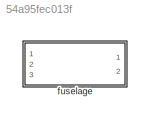
MODEL slx_54a95fec013f
KIND library
CONFIG AbsTol = auto
CONFIG EnableMultiTasking = off
CONFIG FixedStep = auto
CONFIG MaxStep = auto
CONFIG MinStep = auto
CONFIG RelTol = 1e-3
CONFIG SampleTimeConstraint = Unconstrained
CONFIG Solver = VariableStepAuto
CONFIG SolverName = VariableStepAuto
CONFIG StartTime = 0.0
CONFIG StopTime = 10.0
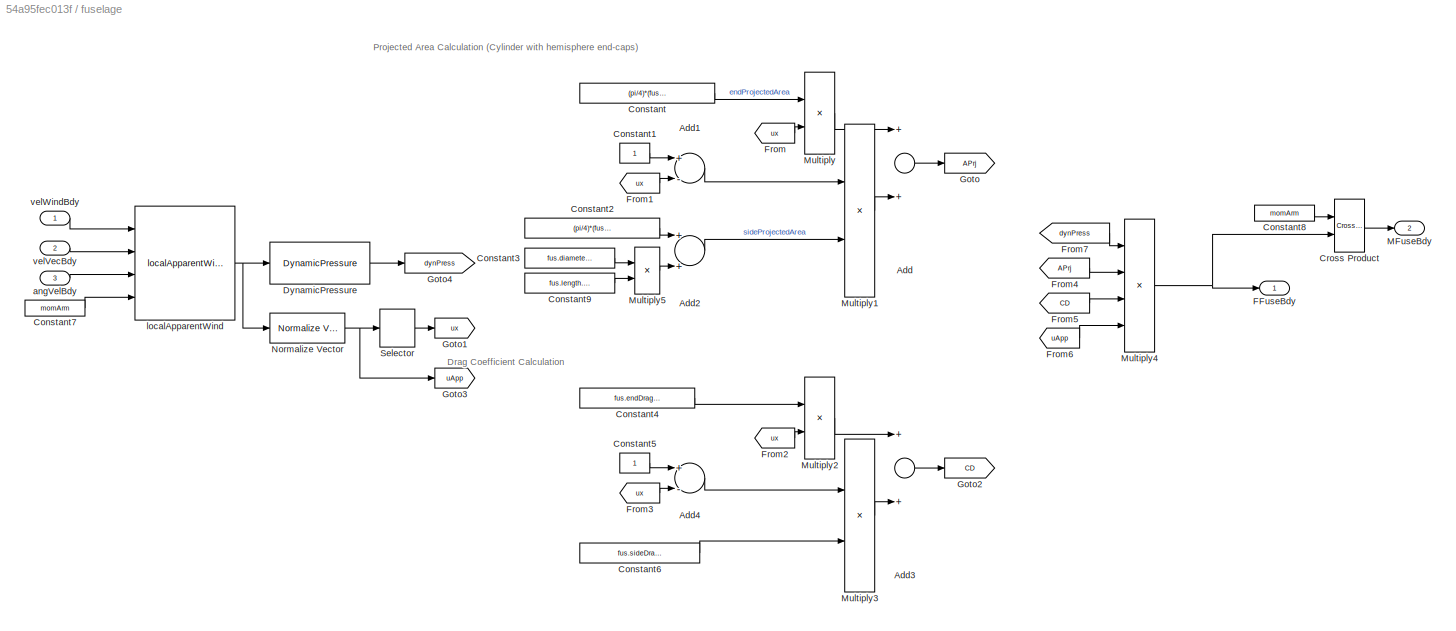
BLOCK [SubSystem] fuselage
  Ports = [3, 2]
  RequestExecContextInheritance = off
BLOCK [Sum] fuselage/Add
  InputSameDT = off
  OutDataTypeStr = Inherit: Inherit via internal rule
  Ports = [2, 1]
  SaturateOnIntegerOverflow = off
BLOCK [Sum] fuselage/Add1
  InputSameDT = off
  Inputs = +-
  OutDataTypeStr = Inherit: Inherit via internal rule
  Ports = [2, 1]
  SaturateOnIntegerOverflow = off
BLOCK [Sum] fuselage/Add2
  InputSameDT = off
  OutDataTypeStr = Inherit: Inherit via internal rule
  Ports = [2, 1]
  SaturateOnIntegerOverflow = off
BLOCK [Sum] fuselage/Add3
  InputSameDT = off
  OutDataTypeStr = Inherit: Inherit via internal rule
  Ports = [2, 1]
  SaturateOnIntegerOverflow = off
BLOCK [Sum] fuselage/Add4
  InputSameDT = off
  Inputs = +-
  OutDataTypeStr = Inherit: Inherit via internal rule
  Ports = [2, 1]
  SaturateOnIntegerOverflow = off
BLOCK [Constant] fuselage/Constant
  Value = (pi/4)*(fus.diameter.Value)^2
BLOCK [Constant] fuselage/Constant1
BLOCK [Constant] fuselage/Constant2
  Value = (pi/4)*(fus.diameter.Value)^2
BLOCK [Constant] fuselage/Constant3
  Value = fus.diameter.Value
BLOCK [Constant] fuselage/Constant4
  Value = fus.endDragCoeff.Value
BLOCK [Constant] fuselage/Constant5
BLOCK [Constant] fuselage/Constant6
  Value = fus.sideDragCoeff.Value
BLOCK [Constant] fuselage/Constant7
  Value = momArm
BLOCK [Constant] fuselage/Constant8
  Value = momArm
BLOCK [Constant] fuselage/Constant9
  Value = fus.length.Value
BLOCK [Reference] fuselage/Cross Product  REF=vrlib/Utilities/Cross Product
  Ports = [2, 1]
  SourceBlock = vrlib/Utilities/Cross Product
  SourceProductBaseCode = VR
  SourceProductName = Simulink 3D Animation
  SourceType = Cross Product
BLOCK [Reference] fuselage/DynamicPressure  REF=dynamicPressure_ul/DynamicPressure
  Ports = [1, 1]
  SourceBlock = dynamicPressure_ul/DynamicPressure
BLOCK [Outport] fuselage/FFuseBdy
  IconDisplay = Port number
BLOCK [From] fuselage/From
  GotoTag = ux
BLOCK [From] fuselage/From1
  GotoTag = ux
BLOCK [From] fuselage/From2
  GotoTag = ux
BLOCK [From] fuselage/From3
  GotoTag = ux
BLOCK [From] fuselage/From4
  GotoTag = APrj
BLOCK [From] fuselage/From5
  GotoTag = CD
BLOCK [From] fuselage/From6
  GotoTag = uApp
BLOCK [From] fuselage/From7
  GotoTag = dynPress
BLOCK [Goto] fuselage/Goto
  GotoTag = APrj
BLOCK [Goto] fuselage/Goto1
  GotoTag = ux
BLOCK [Goto] fuselage/Goto2
  GotoTag = CD
BLOCK [Goto] fuselage/Goto3
  GotoTag = uApp
BLOCK [Goto] fuselage/Goto4
  GotoTag = dynPress
BLOCK [Outport] fuselage/MFuseBdy
  IconDisplay = Port number
  Port = 2
BLOCK [Product] fuselage/Multiply
  InputSameDT = off
  OutDataTypeStr = Inherit: Inherit via internal rule
  Ports = [2, 1]
  RndMeth = Floor
  SaturateOnIntegerOverflow = off
BLOCK [Product] fuselage/Multiply1
  InputSameDT = off
  OutDataTypeStr = Inherit: Inherit via internal rule
  Ports = [2, 1]
  RndMeth = Floor
  SaturateOnIntegerOverflow = off
BLOCK [Product] fuselage/Multiply2
  InputSameDT = off
  OutDataTypeStr = Inherit: Inherit via internal rule
  Ports = [2, 1]
  RndMeth = Floor
  SaturateOnIntegerOverflow = off
BLOCK [Product] fuselage/Multiply3
  InputSameDT = off
  OutDataTypeStr = Inherit: Inherit via internal rule
  Ports = [2, 1]
  RndMeth = Floor
  SaturateOnIntegerOverflow = off
BLOCK [Product] fuselage/Multiply4
  InputSameDT = off
  Inputs = 4
  OutDataTypeStr = Inherit: Inherit via internal rule
  Ports = [4, 1]
  RndMeth = Floor
  SaturateOnIntegerOverflow = off
BLOCK [Product] fuselage/Multiply5
  InputSameDT = off
  OutDataTypeStr = Inherit: Inherit via internal rule
  Ports = [2, 1]
  RndMeth = Floor
  SaturateOnIntegerOverflow = off
BLOCK [Reference] fuselage/Normalize Vector  REF=vrlib/Utilities/Normalize Vector
  Ports = [1, 1]
  SourceBlock = vrlib/Utilities/Normalize Vector
  SourceProductBaseCode = VR
  SourceProductName = Simulink 3D Animation
  SourceType = Normalize Vector
BLOCK [Selector] fuselage/Selector
  IndexOptions = Index vector (dialog)
  Indices = 1
  InputPortWidth = 3
  OutputSizes = 1
  Ports = [1, 1]
BLOCK [Inport] fuselage/angVelBdy
  IconDisplay = Port number
  Port = 3
BLOCK [Reference] fuselage/localApparentWind  REF=localApparentWind_ul/localApparentWind
  Ports = [4, 1]
  SourceBlock = localApparentWind_ul/localApparentWind
  SourceType = SubSystem
BLOCK [Inport] fuselage/velVecBdy
  IconDisplay = Port number
  Port = 2
BLOCK [Inport] fuselage/velWindBdy
  IconDisplay = Port number
ANNOTATION fuselage: Drag Coefficient Calculation
ANNOTATION fuselage: Projected Area Calculation (Cylinder with hemisphere end-caps)
LINE fuselage/Add1:1 -> fuselage/Multiply1:1
LINE fuselage/Add2:1 -> fuselage/Multiply1:2
LINE fuselage/Add3:1 -> fuselage/Goto2:1
LINE fuselage/Add4:1 -> fuselage/Multiply3:1
LINE fuselage/Add:1 -> fuselage/Goto:1
LINE fuselage/Constant1:1 -> fuselage/Add1:1
LINE fuselage/Constant2:1 -> fuselage/Add2:1
LINE fuselage/Constant3:1 -> fuselage/Multiply5:1
LINE fuselage/Constant4:1 -> fuselage/Multiply2:1
LINE fuselage/Constant5:1 -> fuselage/Add4:1
LINE fuselage/Constant6:1 -> fuselage/Multiply3:2
LINE fuselage/Constant7:1 -> fuselage/localApparentWind:4
LINE fuselage/Constant8:1 -> fuselage/Cross Product:1
LINE fuselage/Constant9:1 -> fuselage/Multiply5:2
LINE fuselage/Constant:1 -> fuselage/Multiply:1
LINE fuselage/Cross Product:1 -> fuselage/MFuseBdy:1
LINE fuselage/DynamicPressure:1 -> fuselage/Goto4:1
LINE fuselage/From1:1 -> fuselage/Add1:2
LINE fuselage/From2:1 -> fuselage/Multiply2:2
LINE fuselage/From3:1 -> fuselage/Add4:2
LINE fuselage/From4:1 -> fuselage/Multiply4:2
LINE fuselage/From5:1 -> fuselage/Multiply4:3
LINE fuselage/From6:1 -> fuselage/Multiply4:4
LINE fuselage/From7:1 -> fuselage/Multiply4:1
LINE fuselage/From:1 -> fuselage/Multiply:2
LINE fuselage/Multiply1:1 -> fuselage/Add:2
LINE fuselage/Multiply2:1 -> fuselage/Add3:1
LINE fuselage/Multiply3:1 -> fuselage/Add3:2
NET fuselage/Multiply4:1 -> fuselage/Cross Product:2, fuselage/FFuseBdy:1
LINE fuselage/Multiply5:1 -> fuselage/Add2:2
LINE fuselage/Multiply:1 -> fuselage/Add:1
NET fuselage/Normalize Vector:1 -> fuselage/Goto3:1, fuselage/Selector:1
LINE fuselage/Selector:1 -> fuselage/Goto1:1
LINE fuselage/angVelBdy:1 -> fuselage/localApparentWind:3
NET fuselage/localApparentWind:1 -> fuselage/DynamicPressure:1, fuselage/Normalize Vector:1
LINE fuselage/velVecBdy:1 -> fuselage/localApparentWind:2
LINE fuselage/velWindBdy:1 -> fuselage/localApparentWind:1
note: NET lines group one-source signal fan-out (src -> all destinations, sorted); 1:1 wires keep LINE
